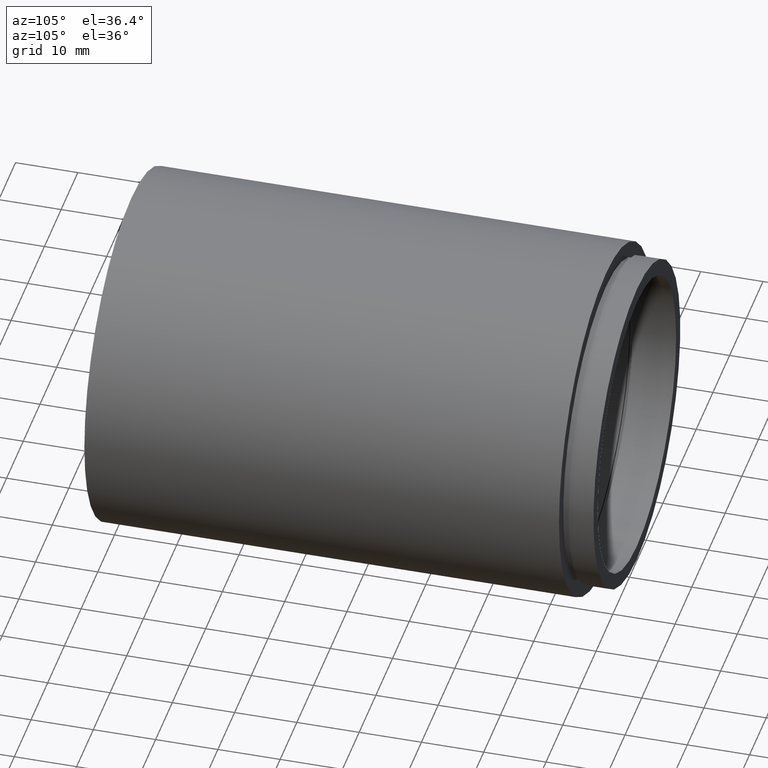
[diagram: clean part render]
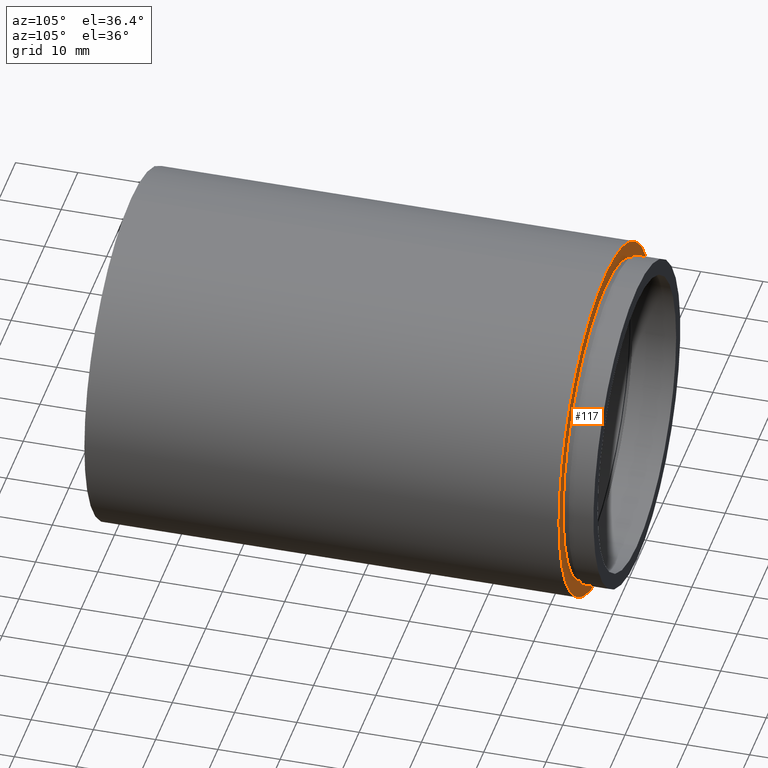
[diagram: same view with one face highlighted and labeled with its STEP entity id]
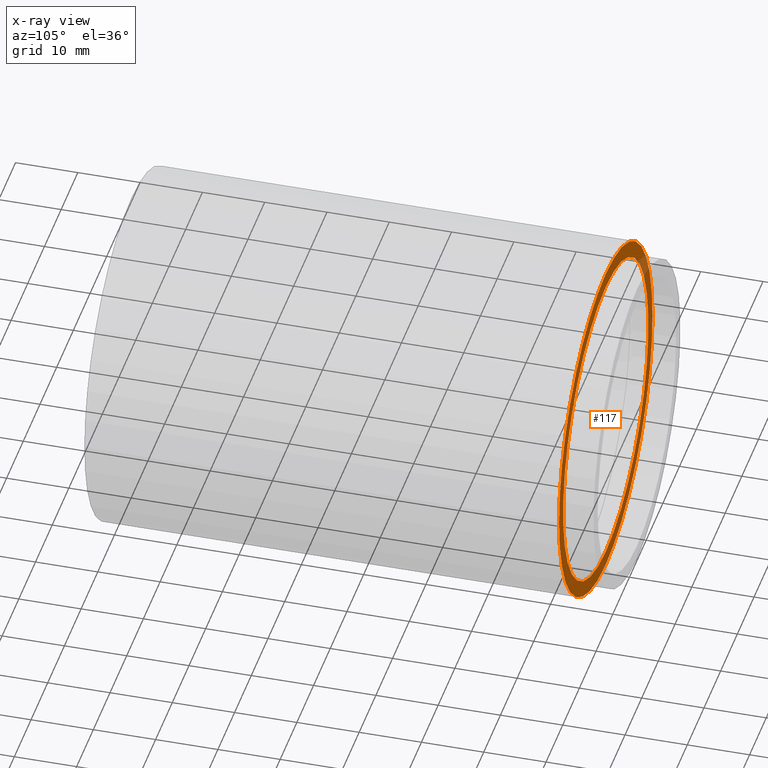
[diagram: x-ray of the same camera — body ghosted, the highlighted face saturated]
A machine part, auxiliary view. The second image highlights one B-rep face of the part: STEP entity #117.
The next image is the same camera in x-ray: the body ghosted, the highlighted face saturated — about 10% of this face is hidden behind the body in this view.
In plain terms, the highlighted planar face has unit normal (0, -1, 0).
Its self-contained STEP definition (entity closure, byte-faithful):
#2 = DIRECTION ( 'NONE',  ( -0.0000000000000000000, 1.000000000000000000, -0.0000000000000000000 ) ) ;
#4 = CARTESIAN_POINT ( 'NONE',  ( 3.429011037612590500E-015, 76.19999999999998900, -28.00000000000001100 ) ) ;
#21 = AXIS2_PLACEMENT_3D ( 'NONE', #273, #600, #128 ) ;
#41 = FACE_OUTER_BOUND ( 'NONE', #285, .T. ) ;
#73 = ORIENTED_EDGE ( 'NONE', *, *, #399, .T. ) ;
#75 = ORIENTED_EDGE ( 'NONE', *, *, #229, .T. ) ;
#81 = PLANE ( 'NONE',  #85 ) ;
#84 = CARTESIAN_POINT ( 'NONE',  ( 0.0000000000000000000, 76.19999999999998900, 0.0000000000000000000 ) ) ;
#85 = AXIS2_PLACEMENT_3D ( 'NONE', #131, #512, #561 ) ;
#101 = EDGE_CURVE ( 'NONE', #413, #414, #106, .T. ) ;
#106 = CIRCLE ( 'NONE', #21, 25.50000000000000700 ) ;
#107 = AXIS2_PLACEMENT_3D ( 'NONE', #244, #2, #396 ) ;
#117 = ADVANCED_FACE ( 'NONE', ( #135, #41 ), #81, .F. ) ;
#128 = DIRECTION ( 'NONE',  ( 0.0000000000000000000, 0.0000000000000000000, 1.000000000000000000 ) ) ;
#131 = CARTESIAN_POINT ( 'NONE',  ( 25.50000000000000700, 76.19999999999998900, 0.0000000000000000000 ) ) ;
#132 = ORIENTED_EDGE ( 'NONE', *, *, #339, .F. ) ;
#135 = FACE_BOUND ( 'NONE', #513, .T. ) ;
#136 = CIRCLE ( 'NONE', #562, 28.00000000000001100 ) ;
#187 = DIRECTION ( 'NONE',  ( 0.0000000000000000000, 0.0000000000000000000, 1.000000000000000000 ) ) ;
#200 = DIRECTION ( 'NONE',  ( -0.0000000000000000000, 1.000000000000000000, -0.0000000000000000000 ) ) ;
#216 = CARTESIAN_POINT ( 'NONE',  ( 0.0000000000000000000, 76.19999999999998900, 28.00000000000001100 ) ) ;
#229 = EDGE_CURVE ( 'NONE', #338, #616, #450, .T. ) ;
#242 = CIRCLE ( 'NONE', #107, 25.50000000000000700 ) ;
#244 = CARTESIAN_POINT ( 'NONE',  ( 0.0000000000000000000, 76.19999999999998900, 0.0000000000000000000 ) ) ;
#245 = CARTESIAN_POINT ( 'NONE',  ( 0.0000000000000000000, 76.19999999999998900, 25.50000000000000700 ) ) ;
#256 = ORIENTED_EDGE ( 'NONE', *, *, #101, .F. ) ;
#273 = CARTESIAN_POINT ( 'NONE',  ( 0.0000000000000000000, 76.19999999999998900, 0.0000000000000000000 ) ) ;
#285 = EDGE_LOOP ( 'NONE', ( #73, #75 ) ) ;
#338 = VERTEX_POINT ( 'NONE', #4 ) ;
#339 = EDGE_CURVE ( 'NONE', #414, #413, #242, .T. ) ;
#349 = DIRECTION ( 'NONE',  ( 0.0000000000000000000, 0.0000000000000000000, 1.000000000000000000 ) ) ;
#396 = DIRECTION ( 'NONE',  ( 0.0000000000000000000, 0.0000000000000000000, 1.000000000000000000 ) ) ;
#399 = EDGE_CURVE ( 'NONE', #616, #338, #136, .T. ) ;
#413 = VERTEX_POINT ( 'NONE', #441 ) ;
#414 = VERTEX_POINT ( 'NONE', #245 ) ;
#441 = CARTESIAN_POINT ( 'NONE',  ( 3.122849337825751800E-015, 76.19999999999998900, -25.50000000000000700 ) ) ;
#450 = CIRCLE ( 'NONE', #518, 28.00000000000001100 ) ;
#472 = DIRECTION ( 'NONE',  ( -0.0000000000000000000, 1.000000000000000000, -0.0000000000000000000 ) ) ;
#485 = CARTESIAN_POINT ( 'NONE',  ( 0.0000000000000000000, 76.19999999999998900, 0.0000000000000000000 ) ) ;
#512 = DIRECTION ( 'NONE',  ( 0.0000000000000000000, -1.000000000000000000, 0.0000000000000000000 ) ) ;
#513 = EDGE_LOOP ( 'NONE', ( #132, #256 ) ) ;
#518 = AXIS2_PLACEMENT_3D ( 'NONE', #84, #472, #187 ) ;
#561 = DIRECTION ( 'NONE',  ( 0.0000000000000000000, -0.0000000000000000000, -1.000000000000000000 ) ) ;
#562 = AXIS2_PLACEMENT_3D ( 'NONE', #485, #200, #349 ) ;
#600 = DIRECTION ( 'NONE',  ( -0.0000000000000000000, 1.000000000000000000, -0.0000000000000000000 ) ) ;
#616 = VERTEX_POINT ( 'NONE', #216 ) ;